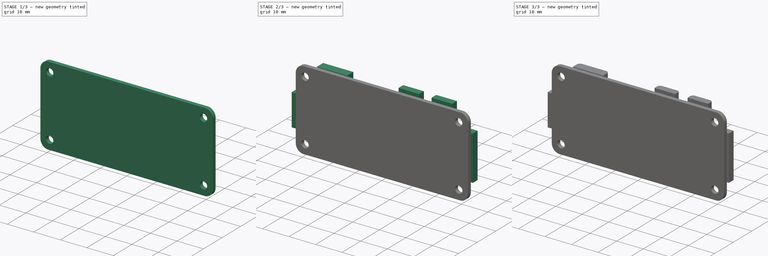
[diagram: build sequence overview — one tinted view per stage of 3, left to right]
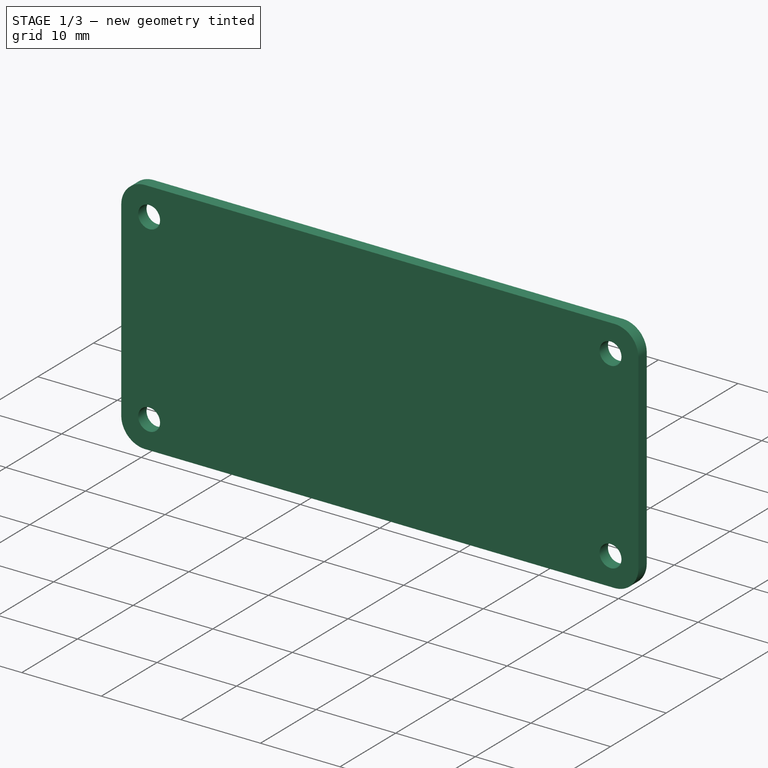
[diagram: stage 1 of 3 — iso view after this stage's code; geometry added in this stage tinted green]
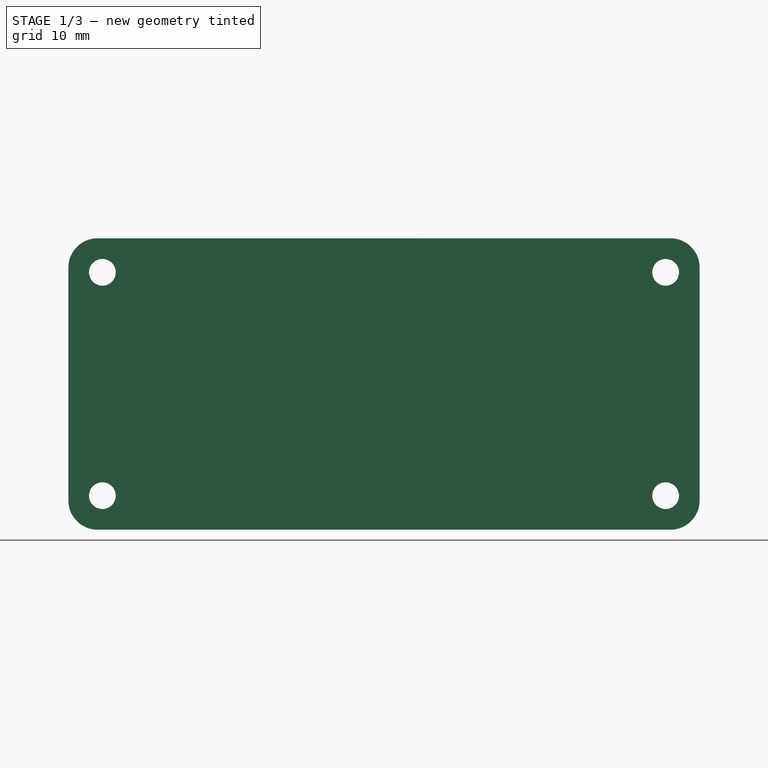
[diagram: stage 1 of 3 — front view after this stage's code; geometry added in this stage tinted green]
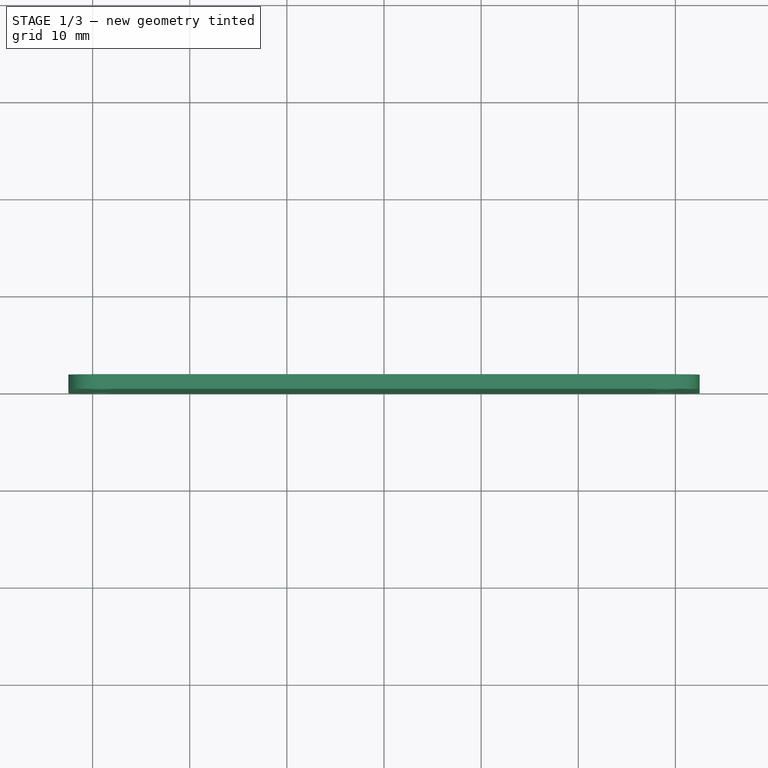
[diagram: stage 1 of 3 — top view after this stage's code; geometry added in this stage tinted green]
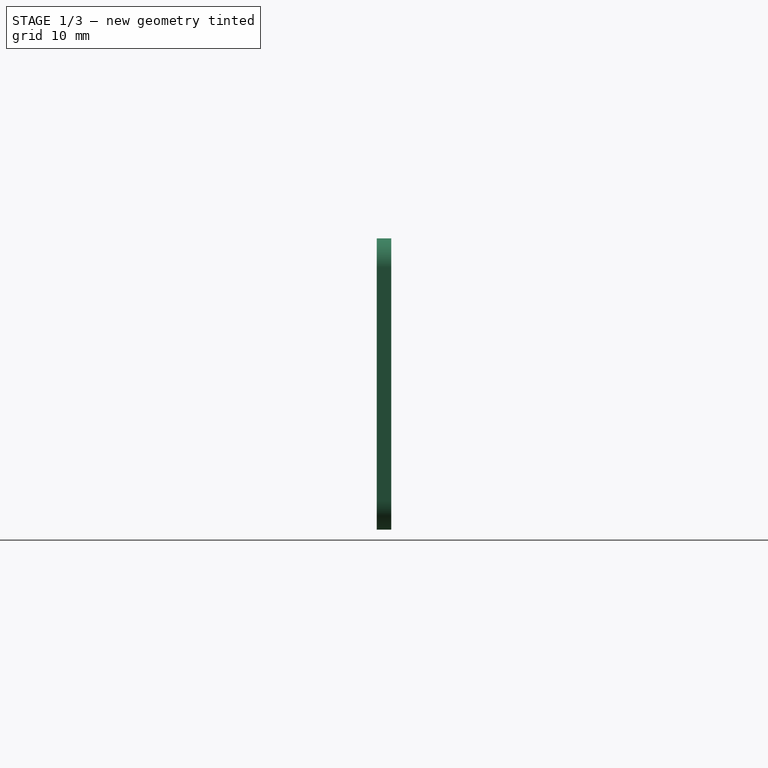
[diagram: stage 1 of 3 — right view after this stage's code; geometry added in this stage tinted green]
FCSTD DOCUMENT  (FreeCAD 0.18.4R)
Label: pizerow2
License: All rights reserved
LicenseURL: http://en.wikipedia.org/wiki/All_rights_reserved
objects: Sketcher::SketchObject×3, PartDesign::Pad×3, PartDesign::Fillet×3, PartDesign::Body×1
note: 13 computed .brp shape members not serialized (recipe doc carries the construction recipe); baked Part::Feature solids carry a one-line shape summary decoded from their .brp

FEATURE [Sketcher::SketchObject] Sketch
  MapMode = 5
  Placement = pos=(0,0,0) rot=(1,0,0;1.5708rad)
  Support = -> [XZ_Plane]
  sketch-geometry (8):
    g0: LineSegment StartX=-32.5 StartY=15.07 StartZ=0 EndX=32.5 EndY=15.07 EndZ=0
    g1: LineSegment StartX=32.5 StartY=15.07 StartZ=0 EndX=32.5 EndY=-14.93 EndZ=0
    g2: LineSegment StartX=32.5 StartY=-14.93 StartZ=0 EndX=-32.5 EndY=-14.93 EndZ=0
    g3: LineSegment StartX=-32.5 StartY=-14.93 StartZ=0 EndX=-32.5 EndY=15.07 EndZ=0
    g4: Circle CenterX=-29 CenterY=11.57 CenterZ=0 NormalX=0 NormalY=0 NormalZ=1 AngleXU=0 Radius=1.375
    g5: Circle CenterX=-29 CenterY=-11.43 CenterZ=0 NormalX=0 NormalY=0 NormalZ=1 AngleXU=0 Radius=1.375
    g6: Circle CenterX=29 CenterY=-11.43 CenterZ=0 NormalX=0 NormalY=0 NormalZ=1 AngleXU=0 Radius=1.375
    g7: Circle CenterX=29 CenterY=11.57 CenterZ=0 NormalX=0 NormalY=0 NormalZ=1 AngleXU=0 Radius=1.375
  constraints (24):
    c: Coincident(g0,g1)
    c: Coincident(g1,g2)
    c: Coincident(g2,g3)
    c: Coincident(g3,g0)
    c: Horizontal(g0)
    c: Horizontal(g2)
    c: Vertical(g1)
    c: Vertical(g3)
    c: Distance(g-1,g3) = 32.5
    c: Distance(g-1,g2) = 14.93
    c: Distance(g3) = 30
    c: Distance(g0) = 65
    c: Equal(g4,g5)
    c: Equal(g5,g6)
    c: Equal(g6,g7)
    c: Vertical(g4,g5)
    c: Vertical(g6,g7)
    c: Horizontal(g4,g7)
    c: Horizontal(g5,g6)
    c: Radius(g4) = 1.375
    c: Distance(g4,g3) = 3.5
    c: Distance(g4,g0) = 3.5
    c: Distance(g6,g2) = 3.5
    c: Distance(g6,g1) = 3.5
FEATURE [PartDesign::Pad] Pad
  Length = 1.5
  Length2 = 100
  Placement = pos=(0,0,0) rot=(1,0,0;1.5708rad)
  Profile = -> Sketch
  Reversed = true
  Type = 0
FEATURE [PartDesign::Fillet] Fillet
  Base = -> Pad [Edge1,Edge8,Edge5,Edge2]
  BaseFeature = -> Pad
  Placement = pos=(0,0,0) rot=(1,0,0;1.5708rad)
  Radius = 3
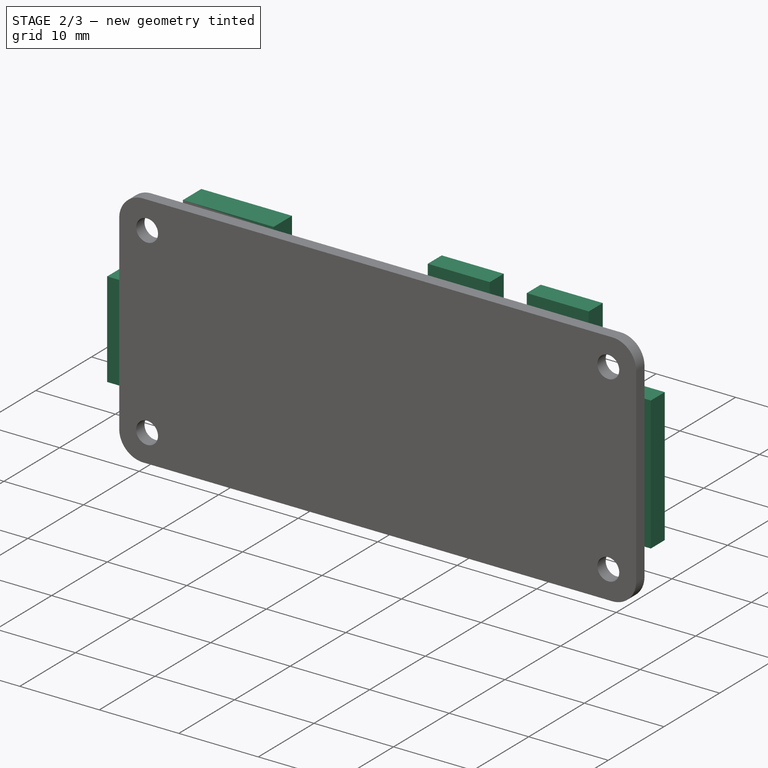
[diagram: stage 2 of 3 — iso view after this stage's code; geometry added in this stage tinted green]
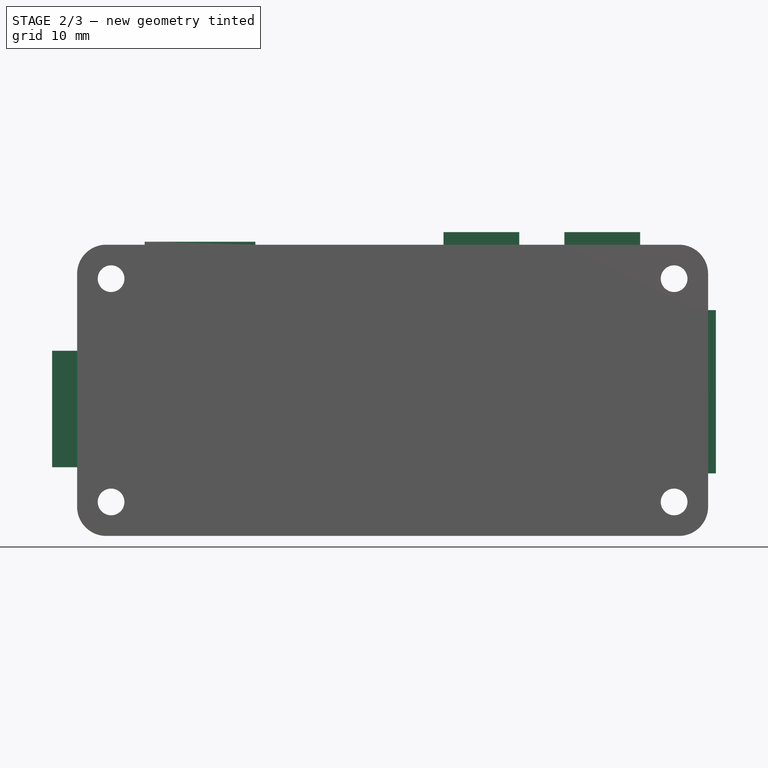
[diagram: stage 2 of 3 — front view after this stage's code; geometry added in this stage tinted green]
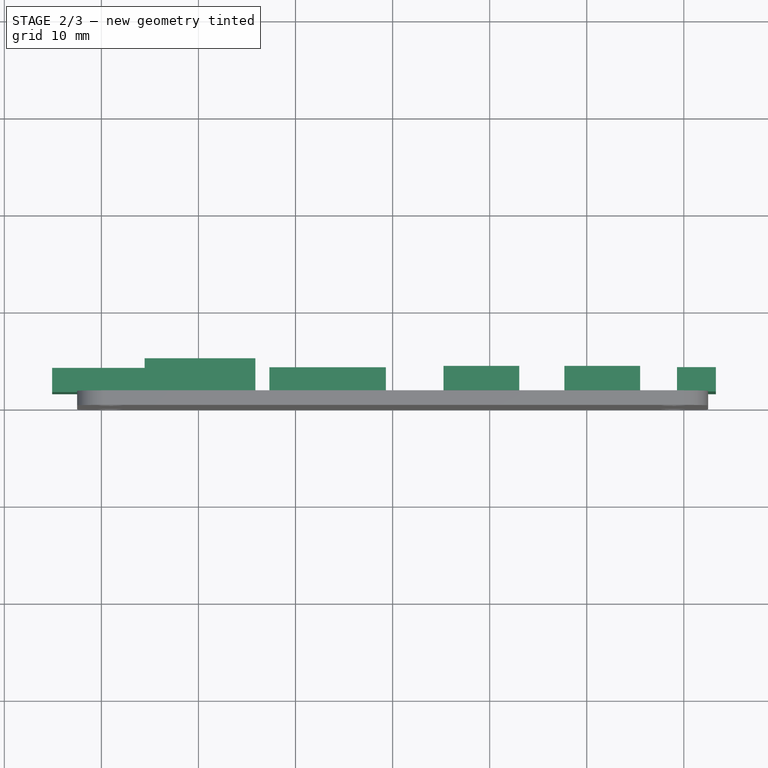
[diagram: stage 2 of 3 — top view after this stage's code; geometry added in this stage tinted green]
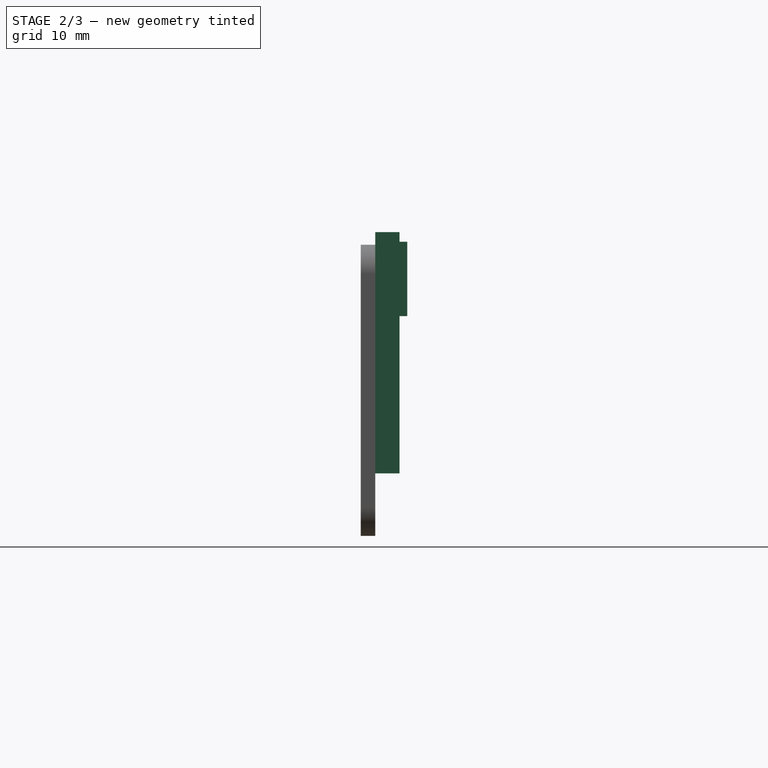
[diagram: stage 2 of 3 — right view after this stage's code; geometry added in this stage tinted green]
FEATURE [Sketcher::SketchObject] Sketch001
  MapMode = 5
  Placement = pos=(0,1.5,-1e-15) rot=(-1,0,0;1.5708rad)
  Support = -> [Fillet]
  sketch-geometry (20):
    g0: LineSegment StartX=-19.57 StartY=7.85 StartZ=0 EndX=-35.07 EndY=7.85 EndZ=0
    g1: LineSegment StartX=-35.07 StartY=7.85 StartZ=0 EndX=-35.07 EndY=-4.15 EndZ=0
    g2: LineSegment StartX=-35.07 StartY=-4.15 StartZ=0 EndX=-19.57 EndY=-4.15 EndZ=0
    g3: LineSegment StartX=-19.57 StartY=-4.15 StartZ=0 EndX=-19.57 EndY=7.85 EndZ=0
    g4: LineSegment StartX=-12.69 StartY=3.95 StartZ=0 EndX=-0.69 EndY=3.95 EndZ=0
    g5: LineSegment StartX=-0.69 StartY=3.95 StartZ=0 EndX=-0.69 EndY=-8.05 EndZ=0
    g6: LineSegment StartX=-0.69 StartY=-8.05 StartZ=0 EndX=-12.69 EndY=-8.05 EndZ=0
    g7: LineSegment StartX=-12.69 StartY=-8.05 StartZ=0 EndX=-12.69 EndY=3.95 EndZ=0
    g8: LineSegment StartX=29.3 StartY=8.49 StartZ=0 EndX=33.3 EndY=8.49 EndZ=0
    g9: LineSegment StartX=33.3 StartY=8.49 StartZ=0 EndX=33.3 EndY=-8.33 EndZ=0
    g10: LineSegment StartX=33.3 StartY=-8.33 StartZ=0 EndX=29.3 EndY=-8.33 EndZ=0
    g11: LineSegment StartX=29.3 StartY=-8.33 StartZ=0 EndX=29.3 EndY=8.49 EndZ=0
    g12: LineSegment StartX=17.7 StartY=-16.37 StartZ=0 EndX=25.5 EndY=-16.37 EndZ=0
    g13: LineSegment StartX=25.5 StartY=-16.37 StartZ=0 EndX=25.5 EndY=-10.37 EndZ=0
    g14: LineSegment StartX=25.5 StartY=-10.37 StartZ=0 EndX=17.7 EndY=-10.37 EndZ=0
    g15: LineSegment StartX=17.7 StartY=-10.37 StartZ=0 EndX=17.7 EndY=-16.37 EndZ=0
    g16: LineSegment StartX=5.25 StartY=-16.37 StartZ=0 EndX=13.05 EndY=-16.37 EndZ=0
    g17: LineSegment StartX=13.05 StartY=-16.37 StartZ=0 EndX=13.05 EndY=-10.37 EndZ=0
    g18: LineSegment StartX=13.05 StartY=-10.37 StartZ=0 EndX=5.25 EndY=-10.37 EndZ=0
    g19: LineSegment StartX=5.25 StartY=-10.37 StartZ=0 EndX=5.25 EndY=-16.37 EndZ=0
  constraints (60):
    c: Coincident(g0,g1)
    c: Coincident(g1,g2)
    c: Coincident(g2,g3)
    c: Coincident(g3,g0)
    c: Horizontal(g0)
    c: Horizontal(g2)
    c: Vertical(g1)
    c: Vertical(g3)
    c: Coincident(g4,g5)
    c: Coincident(g5,g6)
    c: Coincident(g6,g7)
    c: Coincident(g7,g4)
    c: Horizontal(g4)
    c: Horizontal(g6)
    c: Vertical(g5)
    c: Vertical(g7)
    c: Coincident(g8,g9)
    c: Coincident(g9,g10)
    c: Coincident(g10,g11)
    c: Coincident(g11,g8)
    c: Horizontal(g8)
    c: Horizontal(g10)
    c: Vertical(g9)
    c: Vertical(g11)
    c: Coincident(g12,g13)
    c: Coincident(g13,g14)
    c: Coincident(g14,g15)
    c: Coincident(g15,g12)
    c: Horizontal(g12)
    c: Horizontal(g14)
    c: Vertical(g13)
    c: Vertical(g15)
    c: Coincident(g16,g17)
    c: Coincident(g17,g18)
    c: Coincident(g18,g19)
    c: Coincident(g19,g16)
    c: Horizontal(g16)
    c: Horizontal(g18)
    c: Vertical(g17)
    c: Vertical(g19)
    c: DistanceX(g-2,g0) = -19.57
    c: DistanceY(g-1,g0) = 7.85
    c: Distance(g3) = 12
    c: Distance(g0) = 15.5
    c: DistanceY(g-1,g18) = -10.37
    c: DistanceX(g-2,g18) = 5.25
    c: PointOnObject(g14,g18)
    c: PointOnObject(g12,g16)
    c: Distance(g18) = 7.8
    c: Equal(g18,g14)
    c: Distance(g17,g15) = 4.65
    c: Distance(g13) = 6
    c: DistanceX(g-2,g8) = 29.3
    c: DistanceY(g-1,g8) = 8.49
    c: Distance(g11) = 16.82
    c: Distance(g8) = 4
    c: DistanceY(g-1,g4) = 3.95
    c: Distance(g4) = 12
    c: DistanceX(g-2,g4) = -0.69
    c: Equal(g7,g4)
FEATURE [PartDesign::Pad] Pad001
  BaseFeature = -> Fillet
  Length = 2.5
  Length2 = 100
  Placement = pos=(0,0,0) rot=(1,0,0;1.5708rad)
  Profile = -> Sketch001
  Type = 0
FEATURE [Sketcher::SketchObject] Sketch002
  MapMode = 5
  Placement = pos=(0,1.5,-1.7e-15) rot=(-1,0,0;1.5708rad)
  Support = -> [Pad001]
  sketch-geometry (4):
    g0: LineSegment StartX=-25.54 StartY=-7.71 StartZ=0 EndX=-14.13 EndY=-7.71 EndZ=0
    g1: LineSegment StartX=-14.13 StartY=-7.71 StartZ=0 EndX=-14.13 EndY=-15.38 EndZ=0
    g2: LineSegment StartX=-14.13 StartY=-15.38 StartZ=0 EndX=-25.54 EndY=-15.38 EndZ=0
    g3: LineSegment StartX=-25.54 StartY=-15.38 StartZ=0 EndX=-25.54 EndY=-7.71 EndZ=0
  constraints (12):
    c: Coincident(g0,g1)
    c: Coincident(g1,g2)
    c: Coincident(g2,g3)
    c: Coincident(g3,g0)
    c: Horizontal(g0)
    c: Horizontal(g2)
    c: Vertical(g1)
    c: Vertical(g3)
    c: DistanceX(g-2,g0) = -14.13
    c: DistanceY(g-1,g0) = -7.71
    c: Distance(g0) = 11.41
    c: Distance(g1) = 7.67
FEATURE [PartDesign::Pad] Pad002
  BaseFeature = -> Pad001
  Length = 3.3
  Length2 = 100
  Placement = pos=(0,0,0) rot=(1,0,0;1.5708rad)
  Profile = -> Sketch002
  Type = 0
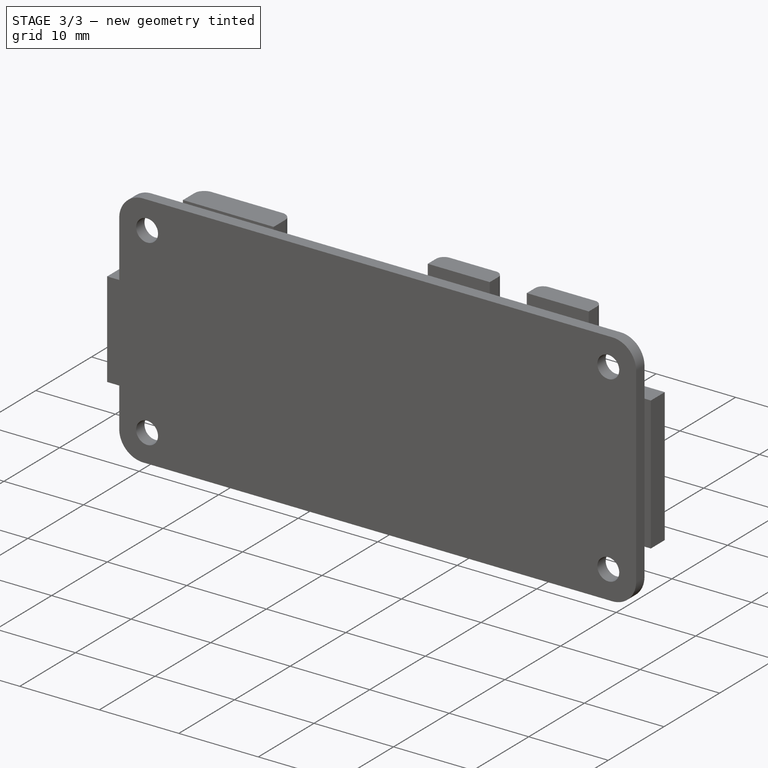
[diagram: stage 3 of 3 — iso view after this stage's code; geometry added in this stage tinted green]
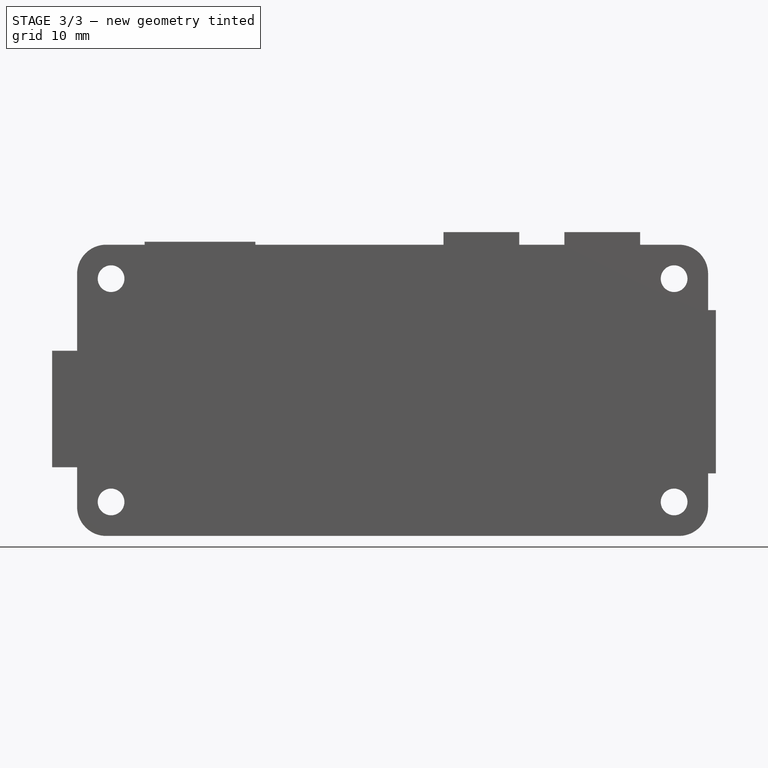
[diagram: stage 3 of 3 — front view after this stage's code; geometry added in this stage tinted green]
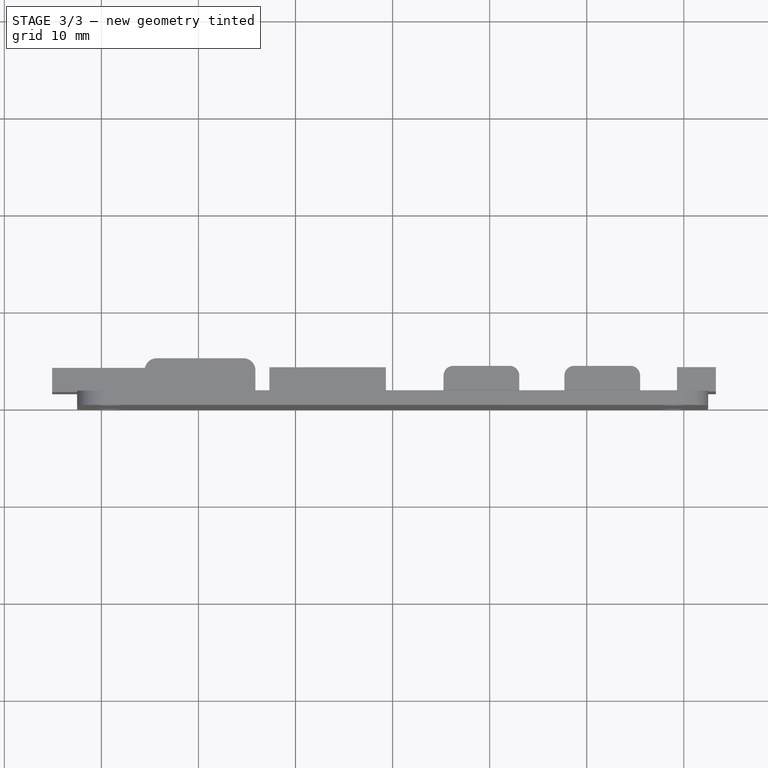
[diagram: stage 3 of 3 — top view after this stage's code; geometry added in this stage tinted green]
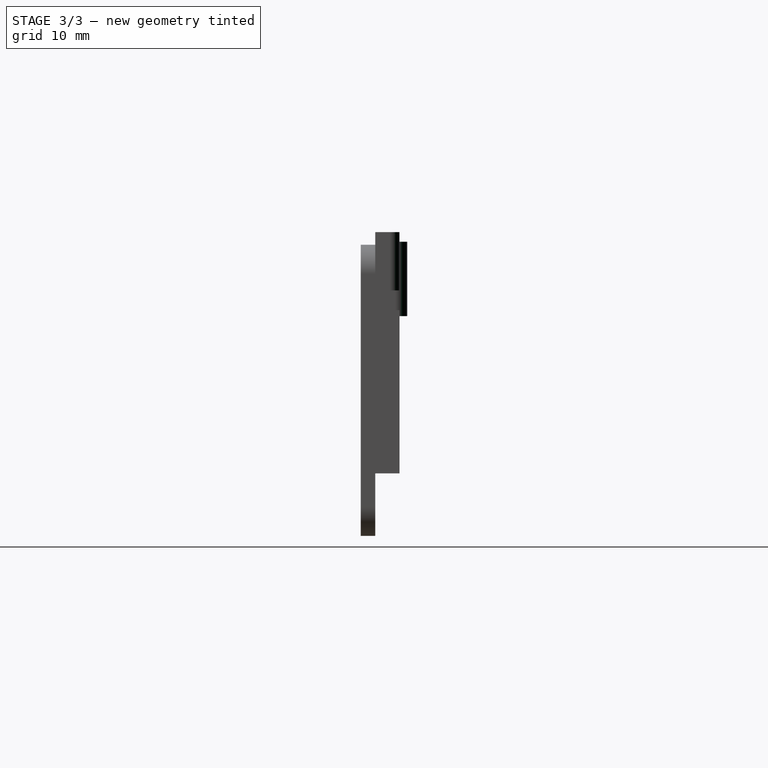
[diagram: stage 3 of 3 — right view after this stage's code; geometry added in this stage tinted green]
FEATURE [PartDesign::Fillet] Fillet001
  Base = -> Pad002 [Edge113,Edge109]
  BaseFeature = -> Pad002
  Placement = pos=(0,0,0) rot=(1,0,0;1.5708rad)
  Radius = 1.25
FEATURE [PartDesign::Fillet] Fillet002
  Base = -> Fillet001 [Edge110,Edge105,Edge101,Edge96]
  BaseFeature = -> Fillet001
  Placement = pos=(0,0,0) rot=(1,0,0;1.5708rad)
  Radius = 1
FEATURE [PartDesign::Body] Body
  Group = -> [Sketch,Pad,Fillet,Sketch001,Pad001,Sketch002,Pad002,Fillet001,Fillet002]
  Origin = -> Origin
  Tip = -> Fillet002
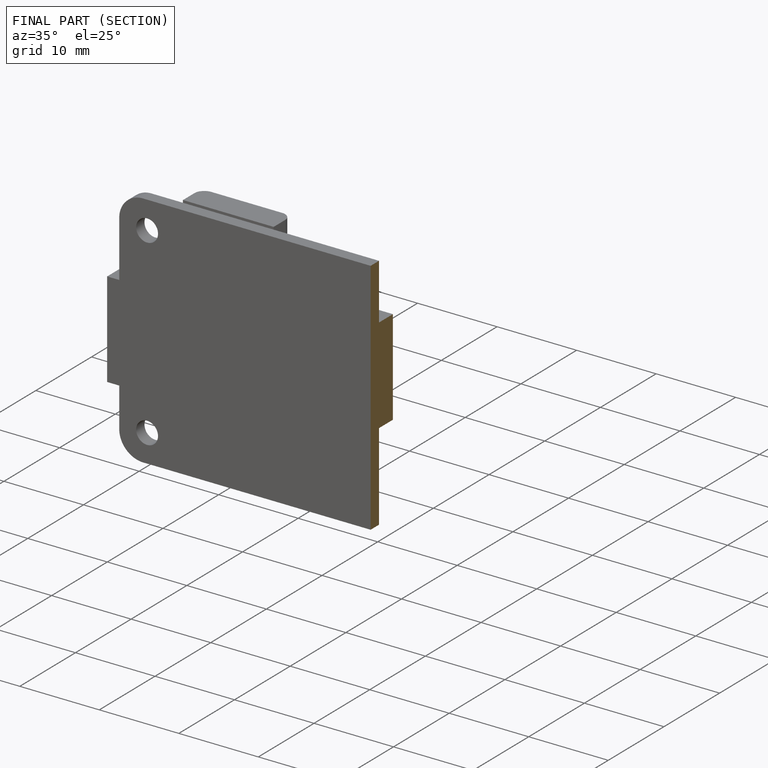
[diagram: finished part — half-section view (interior)]
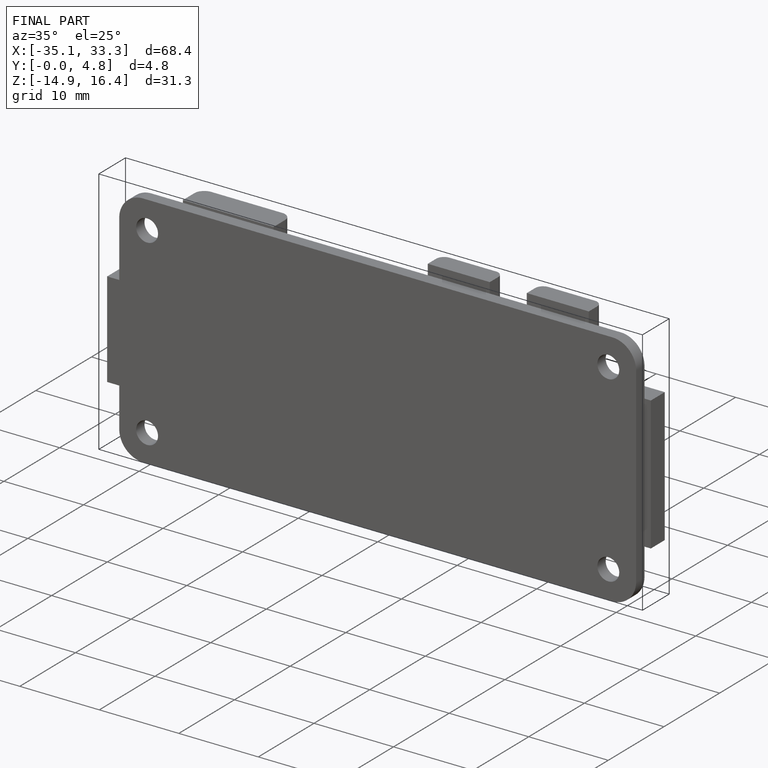
[diagram: finished part — iso view with bounding-box wireframe]
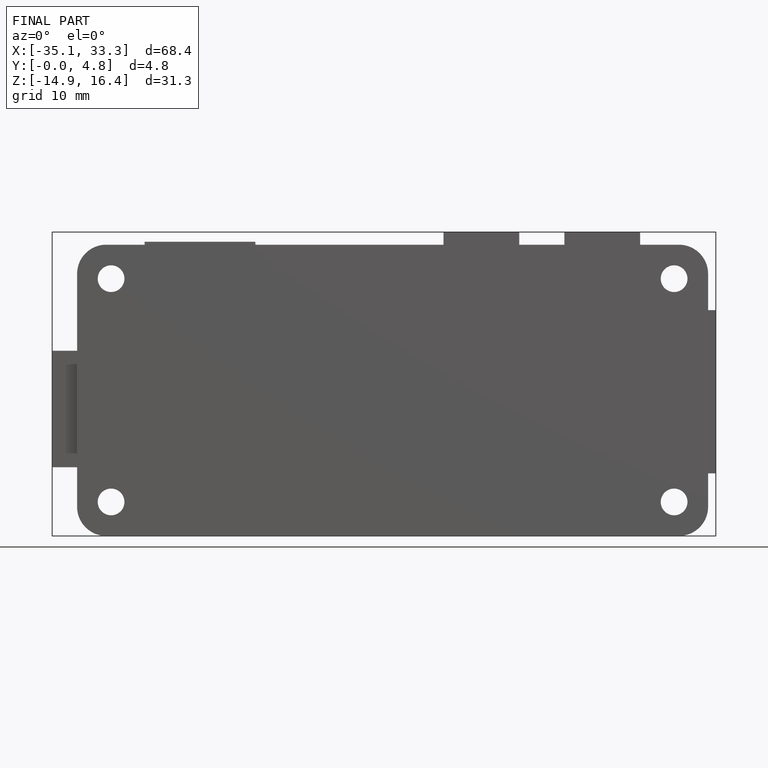
[diagram: finished part — front view with bounding-box wireframe]
